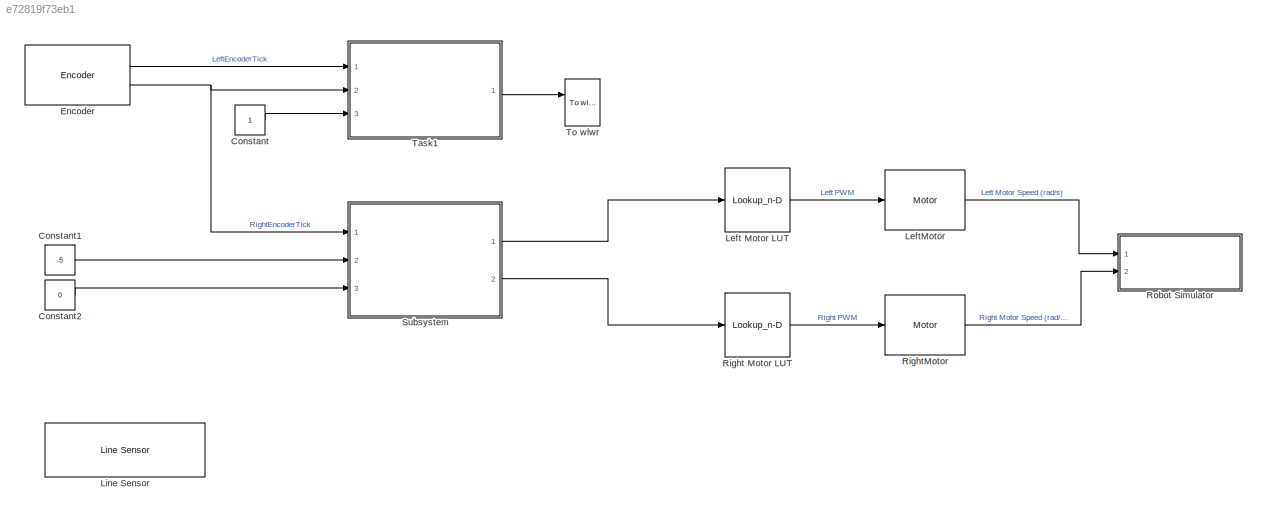
MODEL slx_e72819f73eb1
KIND model
CONFIG AbsTol = auto
CONFIG EnableMultiTasking = off
CONFIG FixedStep = 0.01
CONFIG MaxStep = auto
CONFIG MinStep = auto
CONFIG RelTol = 1e-3
CONFIG SampleTimeConstraint = Unconstrained
CONFIG SolverName = FixedStepDiscrete
CONFIG StartTime = 0.0
CONFIG StopTime = 8
BLOCK [Constant] Constant
BLOCK [Constant] Constant1
  Value = .5
BLOCK [Constant] Constant2
  Value = 0
BLOCK [Reference] Encoder  REF=mobileRoboticsTrainingLib/Encoder
  Ports = [0, 2]
  SourceBlock = mobileRoboticsTrainingLib/Encoder
  SourceProductName = Mobile Robotics Training Library
  SourceType = Encoder Simulation
BLOCK [Lookup_n-D] Left Motor LUT
  BreakpointsForDimension1 = WheelSpeed
  ExtrapMethod = Clip
  InputPortMap = u0
  InternalRulePriority = Speed
  InterpMethod = Nearest
  NumberOfTableDimensions = 1
  Ports = [1, 1]
  RndMeth = Simplest
  Table = InputPWM
BLOCK [Reference] LeftMotor  REF=mobileRoboticsTrainingLib/Motor
  Ports = [1, 1]
  SourceBlock = mobileRoboticsTrainingLib/Motor
  SourceProductName = Mobile Robotics Training Library
  SourceType = Motor Model
BLOCK [Reference] Line Sensor  REF=mobileRoboticsTrainingLib/Line Sensor
  Ports = [0, 1]
  SourceBlock = mobileRoboticsTrainingLib/Line Sensor
  SourceProductName = Mobile Robotics Training Library
  SourceType = Line Sensor Simulation
BLOCK [Lookup_n-D] Right Motor LUT
  BreakpointsForDimension1 = WheelSpeed
  ExtrapMethod = Clip
  InputPortMap = u0
  InternalRulePriority = Speed
  InterpMethod = Nearest
  NumberOfTableDimensions = 1
  Ports = [1, 1]
  RndMeth = Simplest
  Table = InputPWM
BLOCK [Reference] RightMotor  REF=mobileRoboticsTrainingLib/Motor
  Ports = [1, 1]
  SourceBlock = mobileRoboticsTrainingLib/Motor
  SourceProductName = Mobile Robotics Training Library
  SourceType = Motor Model
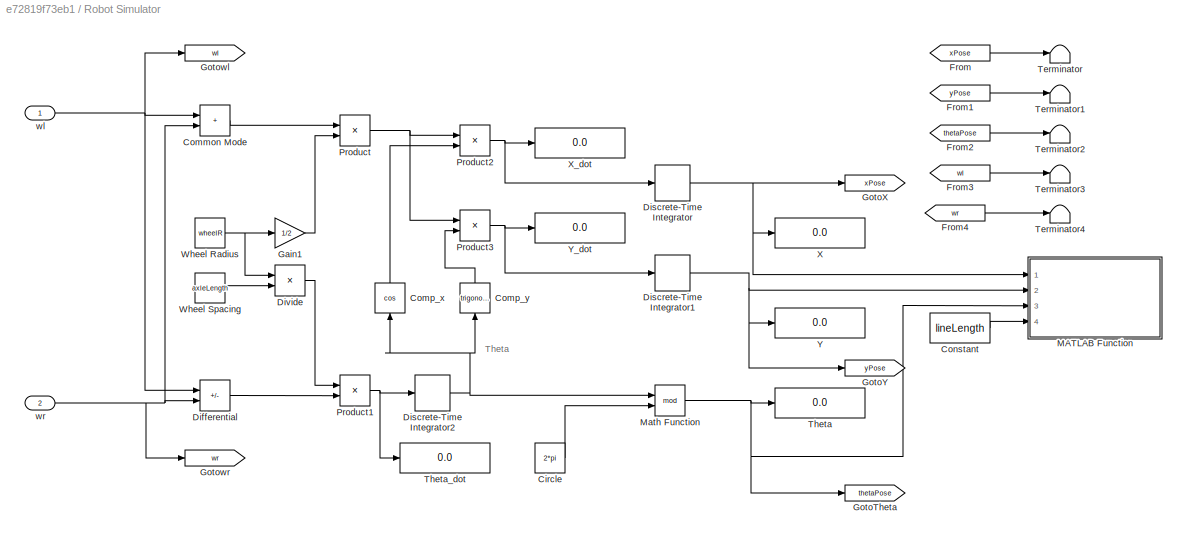
BLOCK [SubSystem] Robot Simulator
  AncestorBlock = mobileRoboticsTrainingLib/Robot Simulator
  Ports = [2]
  Priority = 99
  RequestExecContextInheritance = off
BLOCK [Constant] Robot Simulator/Circle
  Value = 2*pi
BLOCK [Sum] Robot Simulator/Common Mode
  IconShape = rectangular
  Ports = [2, 1]
BLOCK [Trigonometry] Robot Simulator/Comp_x
  NameLocation = right
  Operator = cos
  Ports = [1, 1]
BLOCK [Trigonometry] Robot Simulator/Comp_y
  NameLocation = right
  Ports = [1, 1]
BLOCK [Constant] Robot Simulator/Constant
  Value = lineLength
BLOCK [Sum] Robot Simulator/Differential
  IconShape = rectangular
  Inputs = -+
  Ports = [2, 1]
BLOCK [DiscreteIntegrator] Robot Simulator/Discrete-Time Integrator
  ICPrevOutput = DiscIntNeverNeededParam
  ICPrevScaledInput = DiscIntNeverNeededParam
  InitialCondition = startX
  InitialConditionSetting = Auto
  Ports = [1, 1]
  SampleTime = -1
BLOCK [DiscreteIntegrator] Robot Simulator/Discrete-Time Integrator1
  ICPrevOutput = DiscIntNeverNeededParam
  ICPrevScaledInput = DiscIntNeverNeededParam
  InitialCondition = startY
  InitialConditionSetting = Auto
  Ports = [1, 1]
  SampleTime = -1
BLOCK [DiscreteIntegrator] Robot Simulator/Discrete-Time Integrator2
  ICPrevOutput = DiscIntNeverNeededParam
  ICPrevScaledInput = DiscIntNeverNeededParam
  InitialCondition = startTheta*(pi/180)
  InitialConditionSetting = Auto
  Ports = [1, 1]
  SampleTime = -1
BLOCK [Product] Robot Simulator/Divide
  Inputs = */
  Ports = [2, 1]
BLOCK [From] Robot Simulator/From
  GotoTag = xPose
  TagVisibility = global
BLOCK [From] Robot Simulator/From1
  GotoTag = yPose
  TagVisibility = global
BLOCK [From] Robot Simulator/From2
  GotoTag = thetaPose
  TagVisibility = global
BLOCK [From] Robot Simulator/From3
  GotoTag = wl
  TagVisibility = global
BLOCK [From] Robot Simulator/From4
  GotoTag = wr
  TagVisibility = global
BLOCK [Gain] Robot Simulator/Gain1
  Gain = 1/2
BLOCK [Goto] Robot Simulator/GotoTheta
  GotoTag = thetaPose
  TagVisibility = global
BLOCK [Goto] Robot Simulator/GotoX
  GotoTag = xPose
  TagVisibility = global
BLOCK [Goto] Robot Simulator/GotoY
  GotoTag = yPose
  TagVisibility = global
BLOCK [Goto] Robot Simulator/Gotowl
  GotoTag = wl
  TagVisibility = global
BLOCK [Goto] Robot Simulator/Gotowr
  GotoTag = wr
  TagVisibility = global
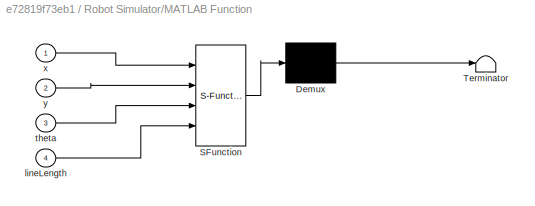
BLOCK [SubSystem] Robot Simulator/MATLAB Function
  ErrorFcn = Stateflow.Translate.translate
  PermitHierarchicalResolution = ExplicitOnly
  Ports = [4]
  RequestExecContextInheritance = off
  SFBlockType = MATLAB Function
  TreatAsAtomicUnit = on
BLOCK [Demux] Robot Simulator/MATLAB Function/ Demux 
  Outputs = 1
  Ports = [1, 1]
BLOCK [S-Function] Robot Simulator/MATLAB Function/ SFunction 
  EnableBusSupport = on
  FunctionName = sf_sfun
  PortCounts = [4 1]
  Ports = [4, 1]
  SFcnIsStateOwnerBlock = off
  SFunctionDeploymentMode = off
  Tag = Stateflow S-Function 1
BLOCK [Terminator] Robot Simulator/MATLAB Function/ Terminator 
BLOCK [Inport] Robot Simulator/MATLAB Function/lineLength
  Port = 4
BLOCK [Inport] Robot Simulator/MATLAB Function/theta
  Port = 3
BLOCK [Inport] Robot Simulator/MATLAB Function/x
BLOCK [Inport] Robot Simulator/MATLAB Function/y
  Port = 2
BLOCK [Math] Robot Simulator/Math Function
  Operator = mod
  Ports = [2, 1]
  SignedPower = on
BLOCK [Product] Robot Simulator/Product
  Ports = [2, 1]
  RndMeth = Zero
BLOCK [Product] Robot Simulator/Product1
  Ports = [2, 1]
  RndMeth = Zero
BLOCK [Product] Robot Simulator/Product2
  Ports = [2, 1]
  RndMeth = Zero
BLOCK [Product] Robot Simulator/Product3
  Ports = [2, 1]
  RndMeth = Zero
BLOCK [Terminator] Robot Simulator/Terminator
BLOCK [Terminator] Robot Simulator/Terminator1
BLOCK [Terminator] Robot Simulator/Terminator2
BLOCK [Terminator] Robot Simulator/Terminator3
BLOCK [Terminator] Robot Simulator/Terminator4
BLOCK [Display] Robot Simulator/Theta
  Decimation = 1
  Ports = [1]
BLOCK [Display] Robot Simulator/Theta_dot
  Decimation = 1
  Ports = [1]
BLOCK [Constant] Robot Simulator/Wheel Radius
  Value = wheelR
BLOCK [Constant] Robot Simulator/Wheel Spacing
  Value = axleLength
BLOCK [Display] Robot Simulator/X
  Decimation = 1
  Ports = [1]
BLOCK [Display] Robot Simulator/X_dot
  Decimation = 1
  Ports = [1]
BLOCK [Display] Robot Simulator/Y
  Decimation = 1
  Ports = [1]
BLOCK [Display] Robot Simulator/Y_dot
  Decimation = 1
  Ports = [1]
BLOCK [Inport] Robot Simulator/wl
BLOCK [Inport] Robot Simulator/wr
  Port = 2
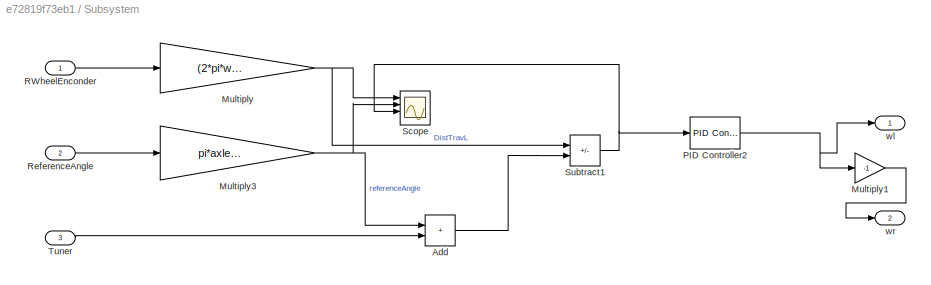
BLOCK [SubSystem] Subsystem
  Ports = [3, 2]
  RequestExecContextInheritance = off
BLOCK [Sum] Subsystem/Add
  IconShape = rectangular
  Ports = [2, 1]
BLOCK [Gain] Subsystem/Multiply
  Gain = (2*pi*wheelR)/ticksPerRot
BLOCK [Gain] Subsystem/Multiply1
  Gain = -1
BLOCK [Gain] Subsystem/Multiply3
  Gain = pi*axleLength+wheelR
BLOCK [Reference] Subsystem/PID Controller2  REF=slpidlib/PID Controller
  Ports = [1, 1]
  SourceBlock = slpidlib/PID Controller
  SourceProductBaseCode = SL
  SourceType = PID 1dof
BLOCK [Inport] Subsystem/RWheelEnconder
BLOCK [Inport] Subsystem/ReferenceAngle
  Port = 2
BLOCK [Scope] Subsystem/Scope
  Floating = off
  NumInputPorts = 4
  Ports = [4]
  ScopeSpecificationString = Simulink.scopes.TimeScopeBlockCfg('CurrentConfiguration', extmgr.ConfigurationSet(extmgr.Configuration('Core','General UI',true),extmgr.Configuration('Core','Source UI',true),extmgr.Configuration('Sources','WiredSimulink',true,'DataLoggingVariableName','ScopeData1'),extmgr.Configuration('Visuals','Time Domain',true,'SerializedDisplays',{struct('MinYLimReal','-0.28641','MaxYLimReal','0.28641','YLab...<+1435ch>
BLOCK [Sum] Subsystem/Subtract1
  IconShape = rectangular
  Inputs = +-
  Ports = [2, 1]
BLOCK [Inport] Subsystem/Tuner
  Port = 3
BLOCK [Outport] Subsystem/wl
BLOCK [Outport] Subsystem/wr
  Port = 2
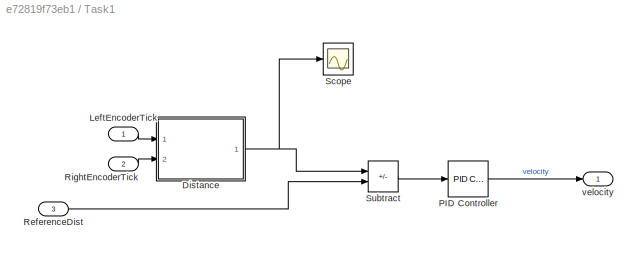
BLOCK [SubSystem] Task1
  Ports = [3, 1]
  RequestExecContextInheritance = off
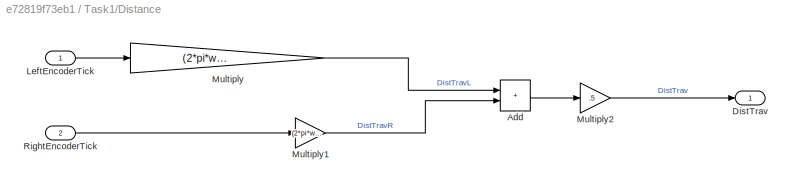
BLOCK [SubSystem] Task1/Distance
  Ports = [2, 1]
  RequestExecContextInheritance = off
BLOCK [Sum] Task1/Distance/Add
  IconShape = rectangular
  Ports = [2, 1]
BLOCK [Outport] Task1/Distance/DistTrav
BLOCK [Inport] Task1/Distance/LeftEncoderTick
BLOCK [Gain] Task1/Distance/Multiply
  Gain = (2*pi*wheelR)/ticksPerRot
BLOCK [Gain] Task1/Distance/Multiply1
  Gain = (2*pi*wheelR)/ticksPerRot
BLOCK [Gain] Task1/Distance/Multiply2
  Gain = .5
BLOCK [Inport] Task1/Distance/RightEncoderTick
  Port = 2
BLOCK [Inport] Task1/LeftEncoderTick
BLOCK [Reference] Task1/PID Controller  REF=slpidlib/PID Controller
  Ports = [1, 1]
  SourceBlock = slpidlib/PID Controller
  SourceProductBaseCode = SL
  SourceType = PID 1dof
BLOCK [Inport] Task1/ReferenceDist
  Port = 3
BLOCK [Inport] Task1/RightEncoderTick
  Port = 2
BLOCK [Scope] Task1/Scope
  Floating = off
  NumInputPorts = 1
  Ports = [1]
  ScopeSpecificationString = Simulink.scopes.TimeScopeBlockCfg('CurrentConfiguration', extmgr.ConfigurationSet(extmgr.Configuration('Core','General UI',true),extmgr.Configuration('Core','Source UI',true),extmgr.Configuration('Sources','WiredSimulink',true,'DataLoggingVariableName','ScopeData1'),extmgr.Configuration('Visuals','Time Domain',true,'SerializedDisplays',{struct('MinYLimReal','-0.27452','MaxYLimReal','0.03591','YLab...<+1367ch>
BLOCK [Sum] Task1/Subtract
  IconShape = rectangular
  Inputs = -+
  Ports = [2, 1]
BLOCK [Outport] Task1/velocity
BLOCK [Reference] To wlwr  REF=mobileRoboticsTrainingLib/To wlwr
  Ports = [2, 2]
  SourceBlock = mobileRoboticsTrainingLib/To wlwr
  SourceProductName = Mobile Robotics Training Library
  SourceType = To wlwr
ANNOTATION Robot Simulator: Theta
LINE Constant1:1 -> Subsystem:2
LINE Constant2:1 -> Subsystem:3
LINE Constant:1 -> Task1:3
LINE Encoder:1 -> Task1:1
NET Encoder:2 -> Subsystem:1, Task1:2
LINE Left Motor LUT:1 -> LeftMotor:1
LINE LeftMotor:1 -> Robot Simulator:1
LINE Right Motor LUT:1 -> RightMotor:1
LINE RightMotor:1 -> Robot Simulator:2
LINE Subsystem/Add:1 -> Subsystem/Subtract1:2
LINE Subsystem/Multiply1:1 -> Subsystem/wr:1
NET Subsystem/Multiply3:1 -> Subsystem/Add:1, Subsystem/Scope:2
NET Subsystem/Multiply:1 -> Subsystem/Scope:1, Subsystem/Subtract1:1
NET Subsystem/PID Controller2:1 -> Subsystem/Multiply1:1, Subsystem/wl:1
LINE Subsystem/RWheelEnconder:1 -> Subsystem/Multiply:1
LINE Subsystem/ReferenceAngle:1 -> Subsystem/Multiply3:1
NET Subsystem/Subtract1:1 -> Subsystem/PID Controller2:1, Subsystem/Scope:3
LINE Subsystem/Tuner:1 -> Subsystem/Add:2
LINE Subsystem:1 -> Left Motor LUT:1
LINE Subsystem:2 -> Right Motor LUT:1
LINE Task1/Distance/Add:1 -> Task1/Distance/Multiply2:1
LINE Task1/Distance/LeftEncoderTick:1 -> Task1/Distance/Multiply:1
LINE Task1/Distance/Multiply1:1 -> Task1/Distance/Add:2
LINE Task1/Distance/Multiply2:1 -> Task1/Distance/DistTrav:1
LINE Task1/Distance/Multiply:1 -> Task1/Distance/Add:1
LINE Task1/Distance/RightEncoderTick:1 -> Task1/Distance/Multiply1:1
NET Task1/Distance:1 -> Task1/Scope:1, Task1/Subtract:1
LINE Task1/LeftEncoderTick:1 -> Task1/Distance:1
LINE Task1/PID Controller:1 -> Task1/velocity:1
LINE Task1/ReferenceDist:1 -> Task1/Subtract:2
LINE Task1/RightEncoderTick:1 -> Task1/Distance:2
LINE Task1/Subtract:1 -> Task1/PID Controller:1
LINE Task1:1 -> To wlwr:1
note: NET lines group one-source signal fan-out (src -> all destinations, sorted); 1:1 wires keep LINE
CHART Robot Simulator/MATLAB Function states=1 transitions=1
  STATE_LABEL 'eML_blk_kernel()'
  STATE_LABEL "SCRIPT:\nfunction plotRobot(x,y,theta,lineLength)\n% Get plot details\ncoder.extrinsic('evalin','plot')\nph1 = evalin('base','PlotHandle1');\nph2 = evalin('base','PlotHandle2');\n\n% Find length orientation line\nxp = [x x+lineLength*cos(theta)];\nyp = [y y+lineLength*sin(theta)];\n\n% Plot robot\nset(ph1,'xdata',xp,'ydata',yp);\nset(ph2,'xdata',x,'ydata',y);\ndrawnow('limitrate')"
CHART  states=0 transitions=0
